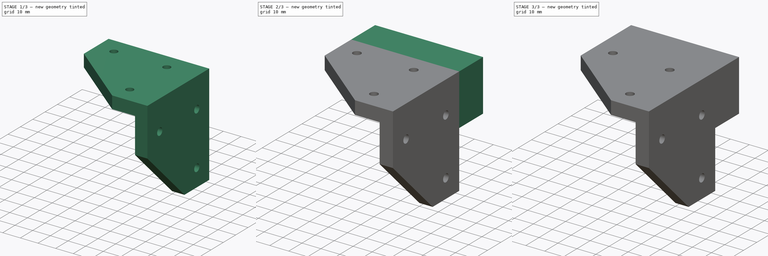
[diagram: build sequence overview — one tinted view per stage of 3, left to right]
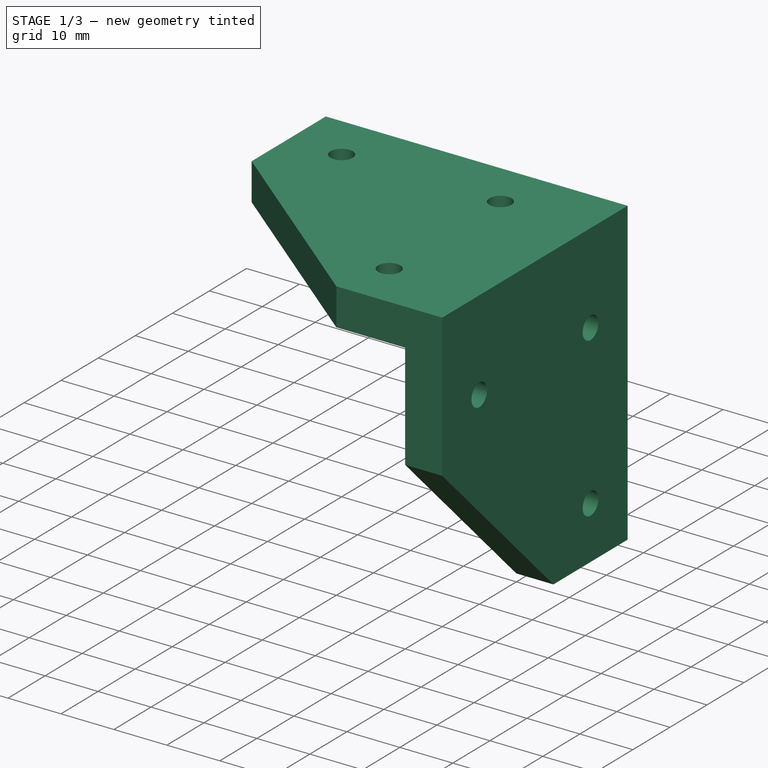
[diagram: stage 1 of 3 — iso view after this stage's code; geometry added in this stage tinted green]
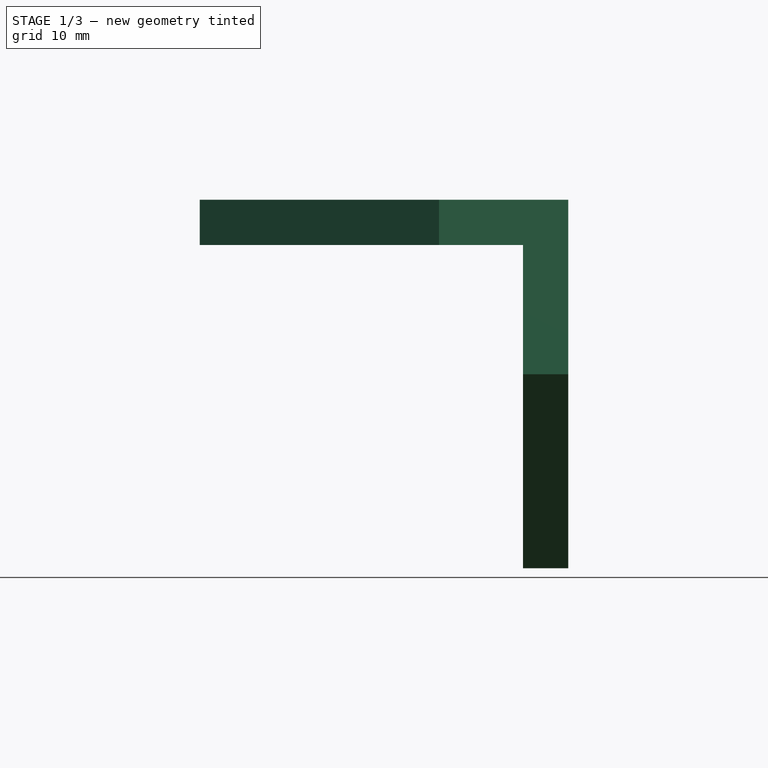
[diagram: stage 1 of 3 — front view after this stage's code; geometry added in this stage tinted green]
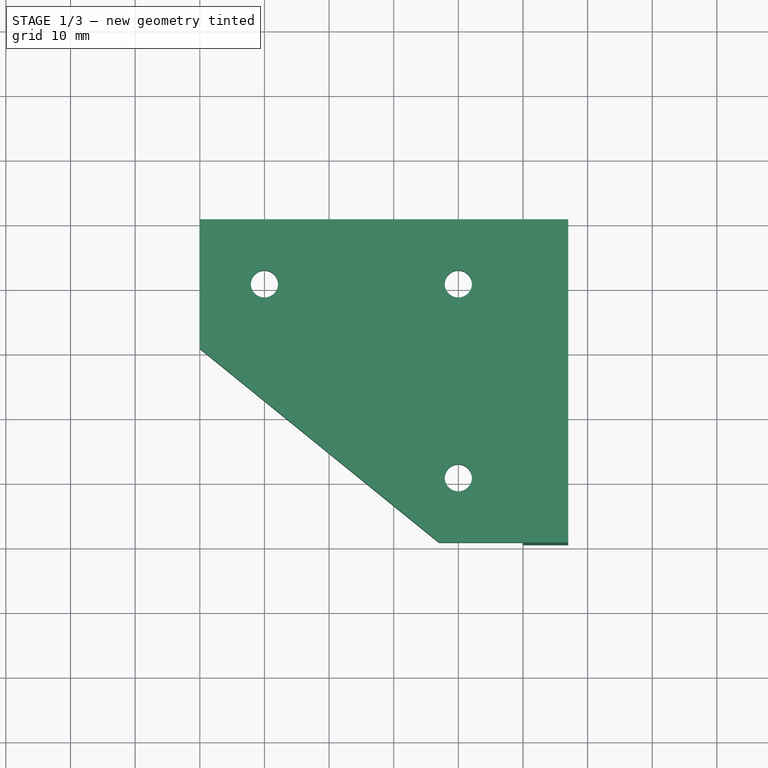
[diagram: stage 1 of 3 — top view after this stage's code; geometry added in this stage tinted green]
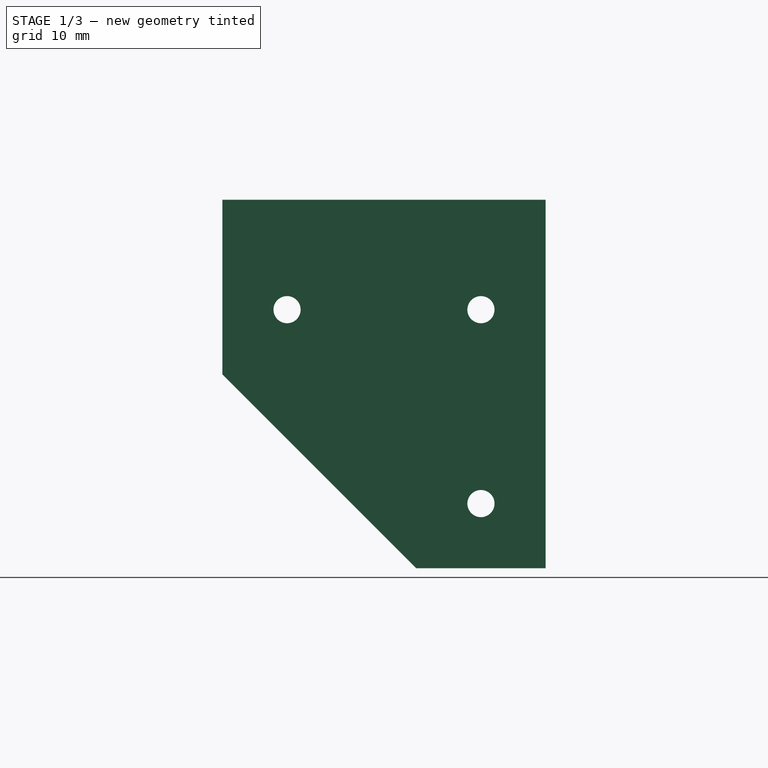
[diagram: stage 1 of 3 — right view after this stage's code; geometry added in this stage tinted green]
FCSTD DOCUMENT  (FreeCAD 0.16R6704 (Git))
Label: xy-pulley-mount2
License: All rights reserved
LicenseURL: http://de.wikipedia.org/wiki/Alle_Rechte_vorbehalten
objects: Sketcher::SketchObject×6, PartDesign::Pad×4, PartDesign::Pocket×2
note: 18 computed .brp shape members not serialized (recipe doc carries the construction recipe); baked Part::Feature solids carry a one-line shape summary decoded from their .brp

FEATURE [Sketcher::SketchObject] Sketch
  sketch-geometry (8):
    g0: LineSegment StartX=-40 StartY=10 StartZ=0 EndX=-40 EndY=-10 EndZ=0
    g1: LineSegment StartX=-40 StartY=-10 StartZ=0 EndX=-3 EndY=-40 EndZ=0
    g2: LineSegment StartX=-3 StartY=-40 StartZ=0 EndX=17 EndY=-40 EndZ=0
    g3: LineSegment StartX=17 StartY=-40 StartZ=0 EndX=17 EndY=10 EndZ=0
    g4: LineSegment StartX=17 StartY=10 StartZ=0 EndX=-40 EndY=10 EndZ=0
    g5: Circle CenterX=0 CenterY=0 CenterZ=0 NormalX=0 NormalY=0 NormalZ=1 Radius=2.1
    g6: Circle CenterX=0 CenterY=-30 CenterZ=0 NormalX=0 NormalY=0 NormalZ=1 Radius=2.1
    g7: Circle CenterX=-30 CenterY=0 CenterZ=0 NormalX=0 NormalY=0 NormalZ=1 Radius=2.1
  constraints (23):
    c: Vertical(g0)
    c: Coincident(g0,g1)
    c: Coincident(g1,g2)
    c: Horizontal(g2)
    c: Coincident(g2,g3)
    c: Vertical(g3)
    c: Coincident(g3,g4)
    c: Coincident(g4,g0)
    c: Horizontal(g4)
    c: Equal(g0,g2)
    c: DistanceX(g2,g2) = 20
    c: DistanceX(g-1,g3) = 17
    c: DistanceY(g-1,g3) = 10
    c: DistanceY(g3,g3) = 50
    c: Coincident(g5,g-1)
    c: PointOnObject(g6,g-2)
    c: PointOnObject(g7,g-1)
    c: Equal(g7,g5)
    c: Equal(g5,g6)
    c: Radius(g7) = 2.1
    c: DistanceX(g7,g-1) = 30
    c: DistanceY(g6,g-1) = 30
    c: DistanceX(g4,g4) = 57
FEATURE [PartDesign::Pad] Pad
  Length = 7
  Length2 = 100
  Sketch = -> Sketch
  Type = 0
FEATURE [Sketcher::SketchObject] Sketch001
  ExternalGeometry = -> [Pad]
  Placement = pos=(17,0,0) rot=(0.57735,0.57735,0.57735;2.0944rad)
  Support = -> Pad [Face4]
  sketch-geometry (8):
    g0: LineSegment StartX=10 StartY=0 StartZ=0 EndX=10 EndY=-50 EndZ=0
    g1: LineSegment StartX=10 StartY=-50 StartZ=0 EndX=-10 EndY=-50 EndZ=0
    g2: LineSegment StartX=-10 StartY=-50 StartZ=0 EndX=-40 EndY=-20 EndZ=0
    g3: LineSegment StartX=-40 StartY=-20 StartZ=0 EndX=-40 EndY=0 EndZ=0
    g4: Circle CenterX=0 CenterY=-10 CenterZ=0 NormalX=0 NormalY=0 NormalZ=1 Radius=2.1
    g5: Circle CenterX=0 CenterY=-40 CenterZ=0 NormalX=0 NormalY=0 NormalZ=1 Radius=2.1
    g6: Circle CenterX=-30 CenterY=-10 CenterZ=0 NormalX=0 NormalY=0 NormalZ=1 Radius=2.1
    g7: LineSegment StartX=-40 StartY=0 StartZ=0 EndX=10 EndY=0 EndZ=0
  constraints (22):
    c: Coincident(g-3,g0)
    c: Vertical(g0)
    c: Coincident(g0,g1)
    c: Horizontal(g1)
    c: Coincident(g1,g2)
    c: Coincident(g2,g3)
    c: Coincident(g3,g-4)
    c: Vertical(g3)
    c: Equal(g1,g3)
    c: DistanceX(g1,g1) = 20
    c: DistanceY(g0,g0) = 50
    c: PointOnObject(g4,g-2)
    c: PointOnObject(g5,g-2)
    c: Equal(g6,g4)
    c: Equal(g4,g5)
    c: Radius(g6) = 2.1
    c: DistanceY(g6,g3) = 10
    c: DistanceY(g4,g0) = 10
    c: DistanceY(g0,g5) = 10
    c: DistanceX(g3,g6) = 10
    c: Coincident(g7,g3)
    c: Coincident(g7,g0)
FEATURE [PartDesign::Pad] Pad001
  Length = 7
  Length2 = 100
  Reversed = true
  Sketch = -> Sketch001
  Type = 0
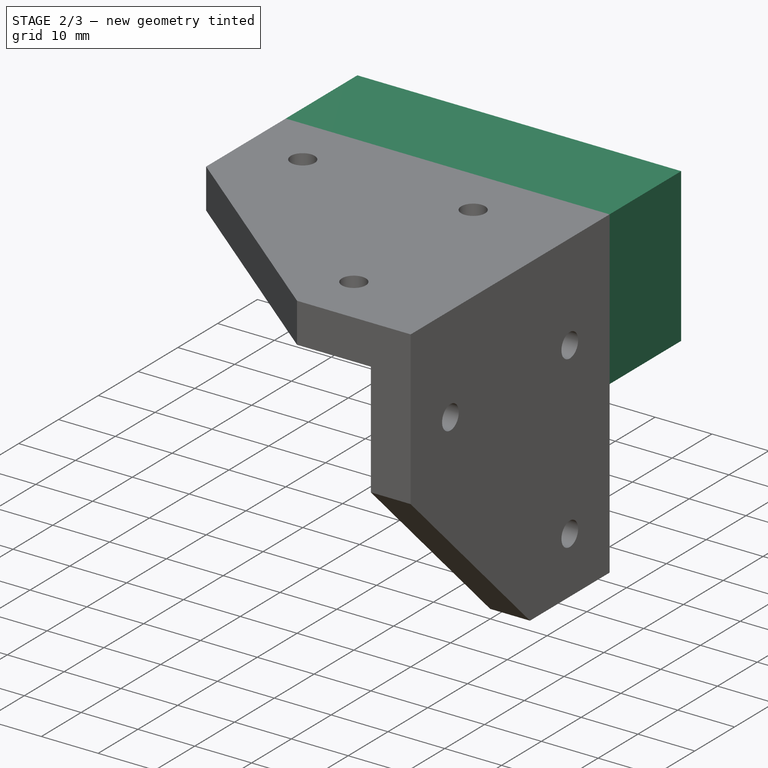
[diagram: stage 2 of 3 — iso view after this stage's code; geometry added in this stage tinted green]
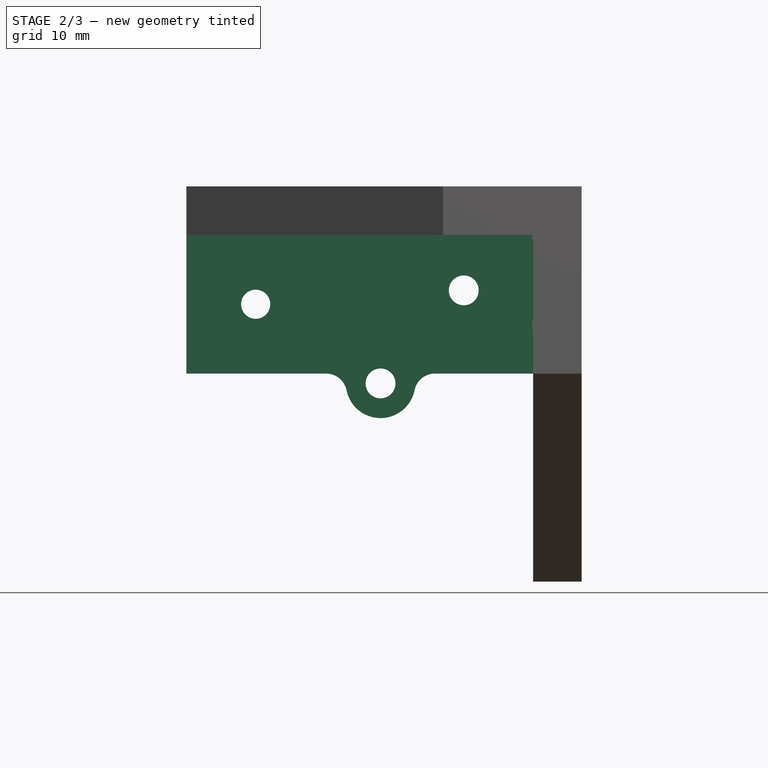
[diagram: stage 2 of 3 — front view after this stage's code; geometry added in this stage tinted green]
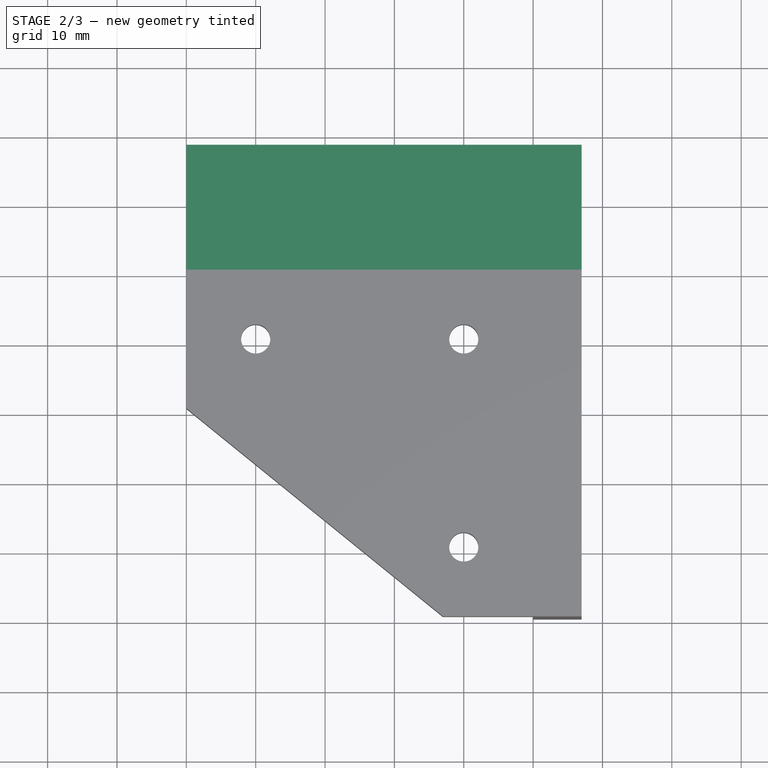
[diagram: stage 2 of 3 — top view after this stage's code; geometry added in this stage tinted green]
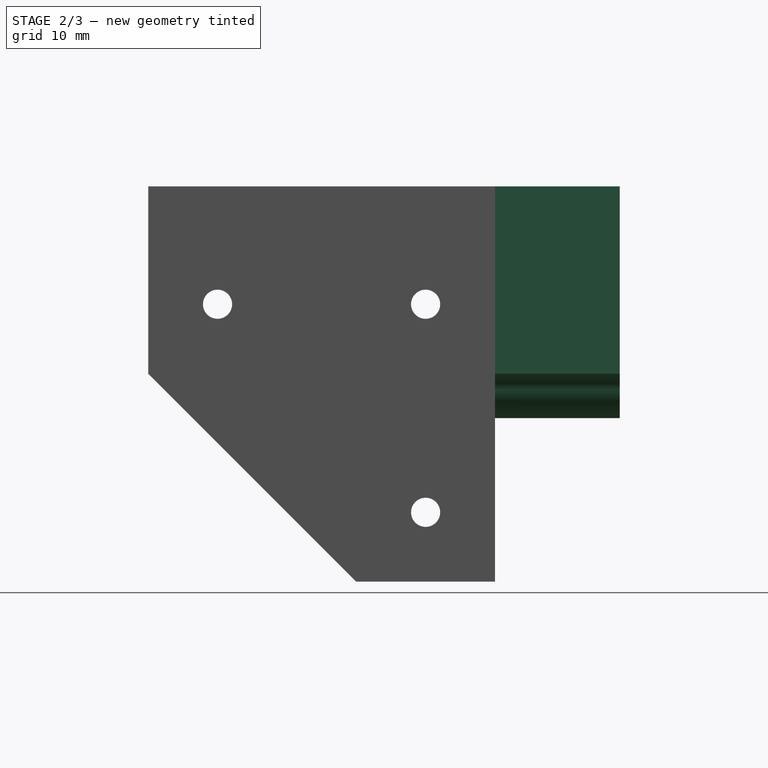
[diagram: stage 2 of 3 — right view after this stage's code; geometry added in this stage tinted green]
FEATURE [Sketcher::SketchObject] Sketch002
  ExternalGeometry = -> [Pad001]
  Placement = pos=(0,10,0) rot=(0,0.707107,0.707107;3.14159rad)
  Support = -> Pad001 [Face2]
  sketch-geometry (14):
    g0: LineSegment StartX=-17 StartY=7 StartZ=0 EndX=40 EndY=7 EndZ=0
    g1: LineSegment StartX=40 StartY=7 StartZ=0 EndX=40 EndY=-20 EndZ=0
    g2: LineSegment StartX=-17 StartY=-20 StartZ=0 EndX=-17 EndY=7 EndZ=0
    g3: Circle CenterX=30 CenterY=-10 CenterZ=0 NormalX=0 NormalY=0 NormalZ=1 Radius=2.1
    g4: Circle CenterX=-12 CenterY=-13 CenterZ=0 NormalX=0 NormalY=0 NormalZ=1 Radius=2.15
    g5: Circle CenterX=15 CenterY=0 CenterZ=0 NormalX=0 NormalY=0 NormalZ=1 Radius=2.15
    g6: Circle CenterX=-12 CenterY=0 CenterZ=0 NormalX=0 NormalY=0 NormalZ=1 Radius=2.15
    g7: Circle CenterX=0 CenterY=-8 CenterZ=0 NormalX=0 NormalY=0 NormalZ=1 Radius=2.15
    g8: Circle CenterX=12 CenterY=-21.4164 CenterZ=0 NormalX=0 NormalY=0 NormalZ=1 Radius=2.15
    g9: LineSegment StartX=-17 StartY=-20 StartZ=0 EndX=4.15832 EndY=-20 EndZ=0
    g10: LineSegment StartX=40 StartY=-20 StartZ=0 EndX=19.8417 EndY=-20 EndZ=0
    g11: ArcOfCircle CenterX=12 CenterY=-21.4164 CenterZ=0 NormalX=0 NormalY=0 NormalZ=1 Radius=5 StartAngle=3.34086 EndAngle=6.08392
    g12: ArcOfCircle CenterX=4.1583 CenterY=-23 CenterZ=0 NormalX=0 NormalY=0 NormalZ=1 Radius=3 StartAngle=0.199264 EndAngle=1.57079
    g13: ArcOfCircle CenterX=19.8417 CenterY=-23 CenterZ=0 NormalX=0 NormalY=0 NormalZ=1 Radius=3 StartAngle=1.5708 EndAngle=2.94233
  constraints (43):
    c: Coincident(g0,g1)
    c: Coincident(g2,g0)
    c: Horizontal(g0)
    c: Vertical(g1)
    c: Vertical(g2)
    c: Coincident(g0,g-3)
    c: Coincident(g0,g-4)
    c: DistanceY(g2,g2) = 27
    c: DistanceY(g1,g3) = 10
    c: DistanceX(g3,g1) = 10
    c: Radius(g3) = 2.1
    c: Equal(g5,g4)
    c: Radius(g5) = 2.15
    c: PointOnObject(g5,g-1)
    c: DistanceX(g-1,g5) = 15
    c: DistanceY(g2,g4) = 7
    c: PointOnObject(g6,g-1)
    c: Equal(g6,g4)
    c: PointOnObject(g7,g-2)
    c: Radius(g7) = 2.15
    c: DistanceY(g2,g7) = 12
    c: DistanceX(g2,g4) = 5
    c: DistanceX(g0,g6) = 5
    c: Equal(g8,g7)
    c: Coincident(g9,g2)
    c: Horizontal(g9)
    c: Coincident(g10,g1)
    c: Horizontal(g10)
    c: Coincident(g11,g8)
    c: Distance(g8,g7) = 18
    c: DistanceX(g-1,g8) = 12
    c: Equal(g1,g2)
    c: Radius(g11) = 5
    c: Coincident(g12,g9)
    c: Coincident(g12,g11)
    c: Tangent(g12,g9)
    c: Tangent(g11,g12)
    c: Coincident(g13,g11)
    c: Coincident(g13,g10)
    c: Tangent(g13,g11)
    c: Tangent(g10,g13)
    c: Equal(g12,g13)
    c: Radius(g13) = 3
FEATURE [PartDesign::Pad] Pad002
  Length = 18
  Length2 = 100
  Sketch = -> Sketch002
  Type = 0
FEATURE [Sketcher::SketchObject] Sketch003
  ExternalGeometry = -> [Pad002]
  Placement = pos=(0,10,0) rot=(1,0,0;1.5708rad)
  Support = -> Pad002 [Face9]
  sketch-geometry (3):
    g0: Circle CenterX=-15 CenterY=0 CenterZ=0 NormalX=0 NormalY=0 NormalZ=1 Radius=2.15
    g1: Circle CenterX=12 CenterY=0 CenterZ=0 NormalX=0 NormalY=0 NormalZ=1 Radius=2.15
    g2: Circle CenterX=12 CenterY=-13 CenterZ=0 NormalX=0 NormalY=0 NormalZ=1 Radius=2.15
  constraints (6):
    c: Coincident(g0,g-5)
    c: Coincident(g1,g-3)
    c: Coincident(g2,g-4)
    c: Equal(g2,g-4)
    c: Equal(g-3,g1)
    c: Equal(g0,g-5)
FEATURE [PartDesign::Pad] Pad003
  Length = 13
  Length2 = 100
  Reversed = true
  Sketch = -> Sketch003
  Type = 0
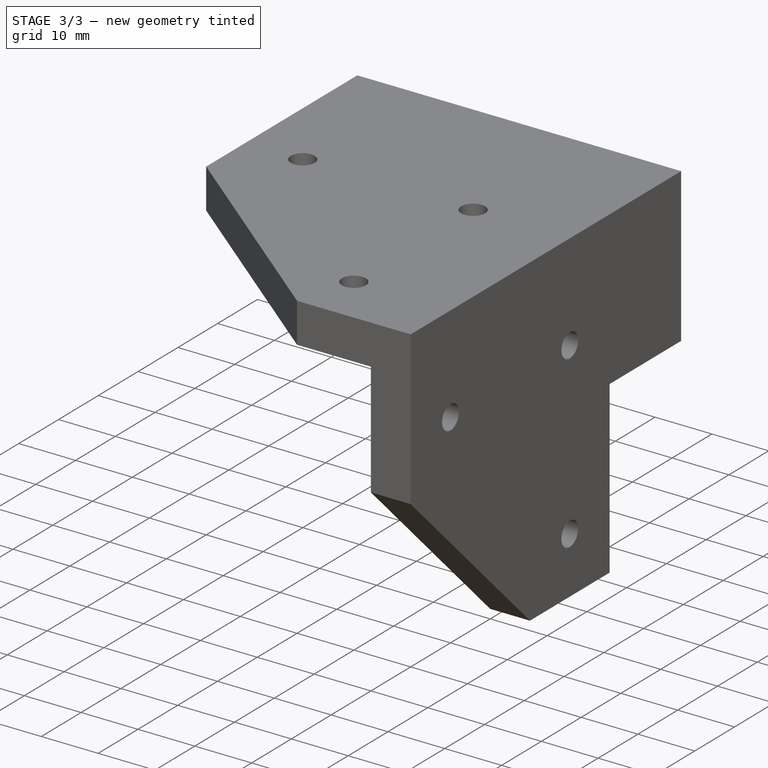
[diagram: stage 3 of 3 — iso view after this stage's code; geometry added in this stage tinted green]
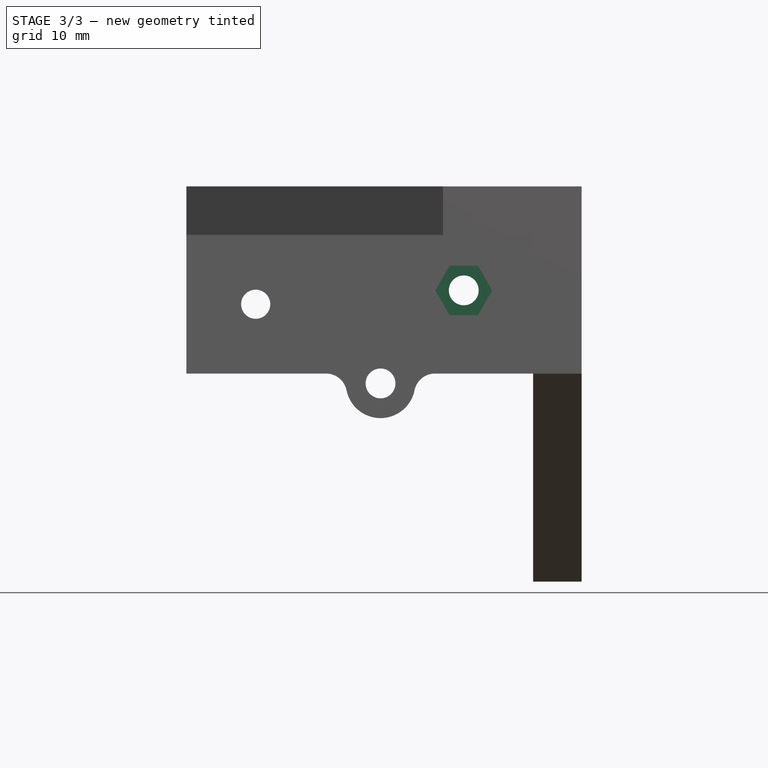
[diagram: stage 3 of 3 — front view after this stage's code; geometry added in this stage tinted green]
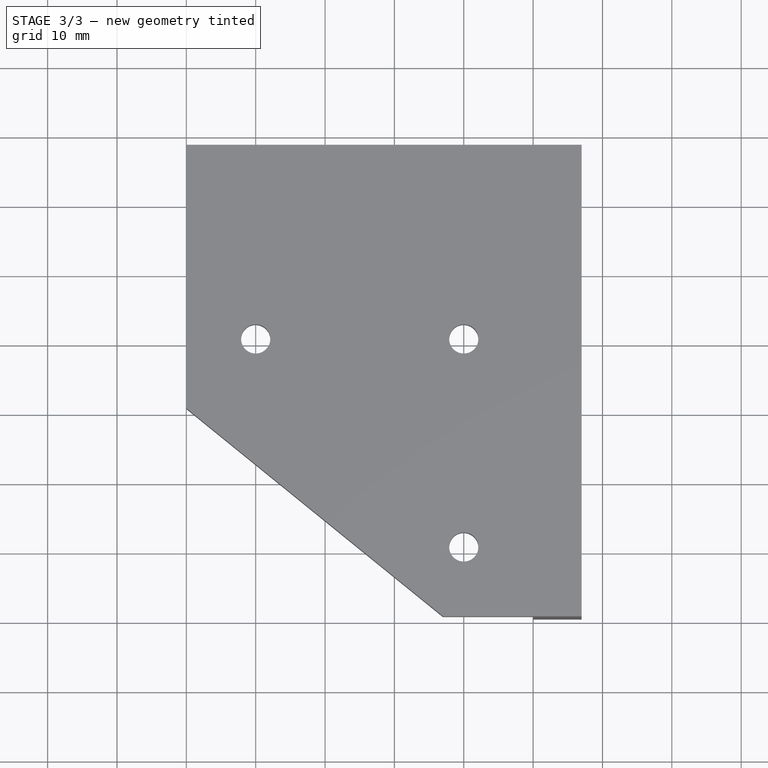
[diagram: stage 3 of 3 — top view after this stage's code; geometry added in this stage tinted green]
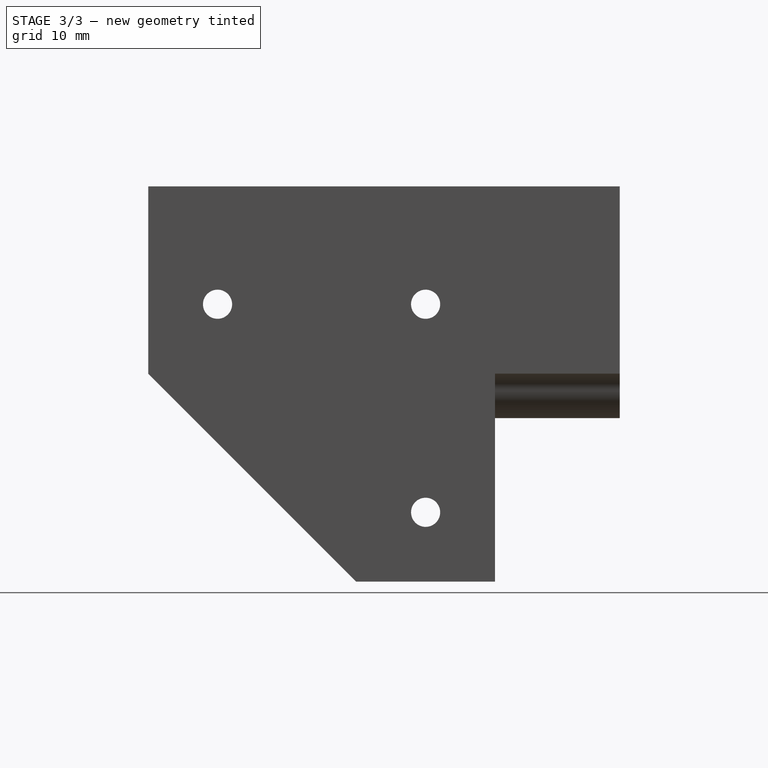
[diagram: stage 3 of 3 — right view after this stage's code; geometry added in this stage tinted green]
FEATURE [Sketcher::SketchObject] Sketch004
  ExternalGeometry = -> [Pad003]
  Placement = pos=(0,28,0) rot=(0,0.707107,0.707107;3.14159rad)
  Support = -> Pad003 [Face17]
  sketch-geometry (1):
    g0: Circle CenterX=30 CenterY=-10 CenterZ=0 NormalX=0 NormalY=0 NormalZ=1 Radius=3.6
  constraints (2):
    c: Coincident(g0,g-3)
    c: Radius(g0) = 3.6
FEATURE [PartDesign::Pocket] Pocket
  Length = 10
  Sketch = -> Sketch004
  Type = 0
FEATURE [Sketcher::SketchObject] Sketch005
  ExternalGeometry = -> [Pocket]
  Placement = pos=(0,10,0) rot=(1,0,0;1.5708rad)
  Support = -> Pocket [Face9]
  sketch-geometry (7):
    g0: LineSegment StartX=2.04959 StartY=-11.55 StartZ=0 EndX=4.09919 EndY=-8 EndZ=0
    g1: LineSegment StartX=4.09919 StartY=-8 StartZ=0 EndX=2.04959 EndY=-4.45 EndZ=0
    g2: LineSegment StartX=2.04959 StartY=-4.45 StartZ=0 EndX=-2.04959 EndY=-4.45 EndZ=0
    g3: LineSegment StartX=-2.04959 StartY=-4.45 StartZ=0 EndX=-4.09919 EndY=-8 EndZ=0
    g4: LineSegment StartX=-4.09919 StartY=-8 StartZ=0 EndX=-2.04959 EndY=-11.55 EndZ=0
    g5: LineSegment StartX=-2.04959 StartY=-11.55 StartZ=0 EndX=2.04959 EndY=-11.55 EndZ=0
    g6: Circle [constr] CenterX=0 CenterY=-8 CenterZ=0 NormalX=0 NormalY=0 NormalZ=1 Radius=4.09919
  constraints (16):
    c: Coincident(g0,g1)
    c: Coincident(g1,g2)
    c: Coincident(g2,g3)
    c: Coincident(g3,g4)
    c: Coincident(g4,g5)
    c: Coincident(g5,g0)
    c: Equal(g0, g1-g5) x5
    c: PointOnObject(g0,g6)
    c: PointOnObject(g1,g6)
    c: PointOnObject(g2,g6)
    c: PointOnObject(g3,g6)
    c: PointOnObject(g4,g6)
    c: PointOnObject(g5,g6)
    c: Coincident(g6,g-3)
    c: Horizontal(g5)
    c: Distance(g4,g0) = 7.1
FEATURE [PartDesign::Pocket] Pocket001
  Length = 10
  Sketch = -> Sketch005
  Type = 0
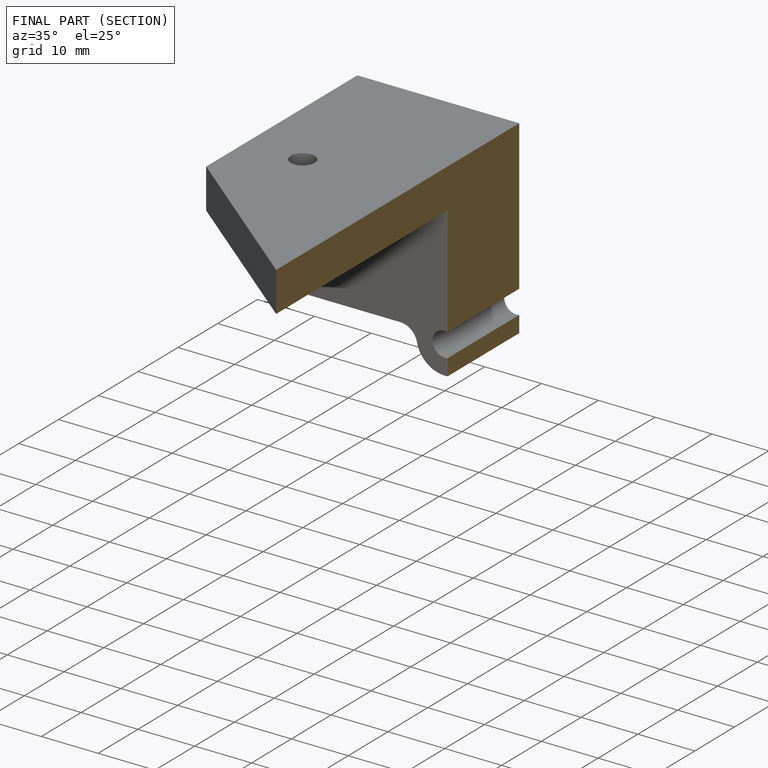
[diagram: finished part — half-section view (interior)]
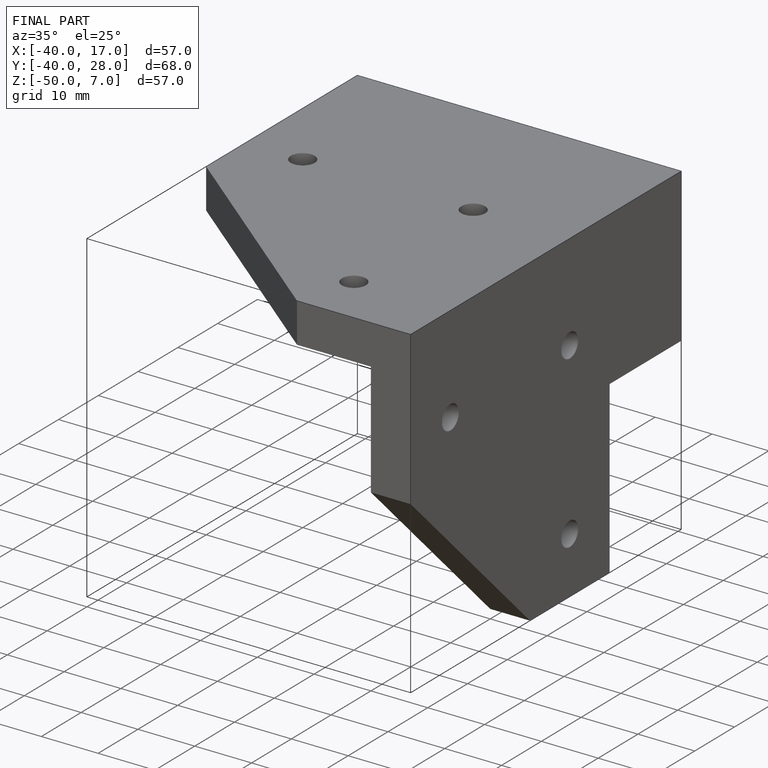
[diagram: finished part — iso view with bounding-box wireframe]
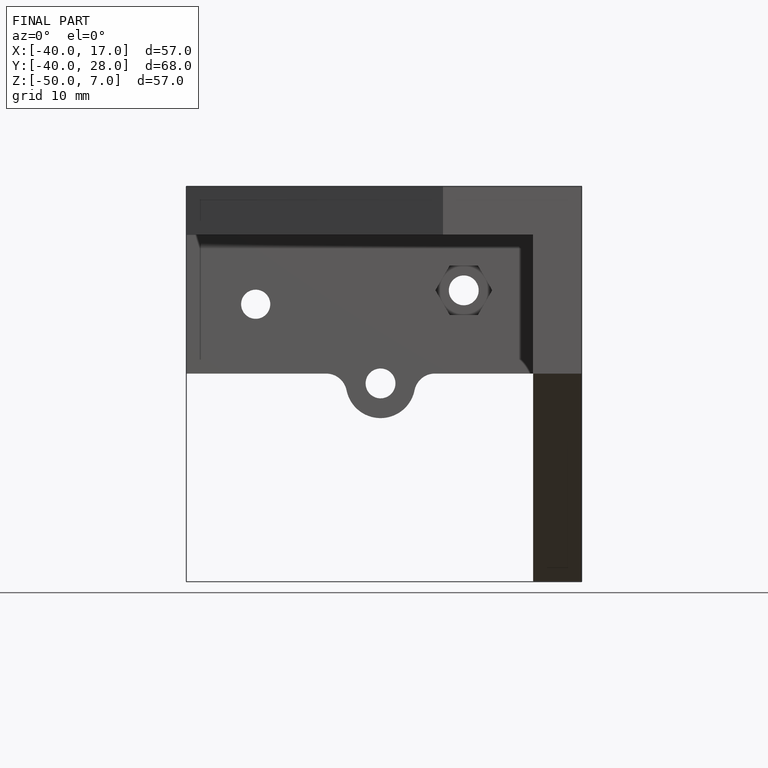
[diagram: finished part — front view with bounding-box wireframe]
